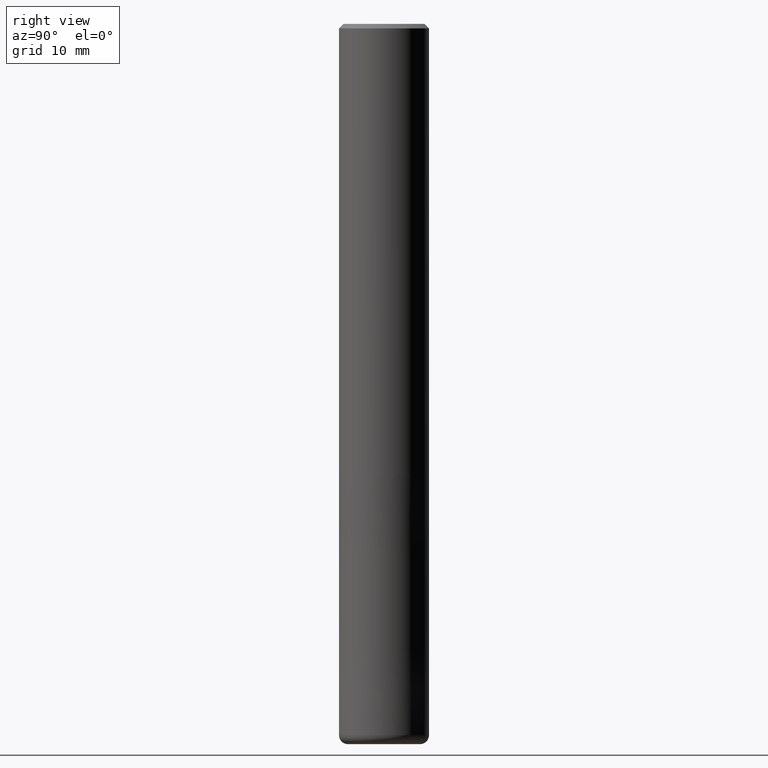
[diagram: clean part render]
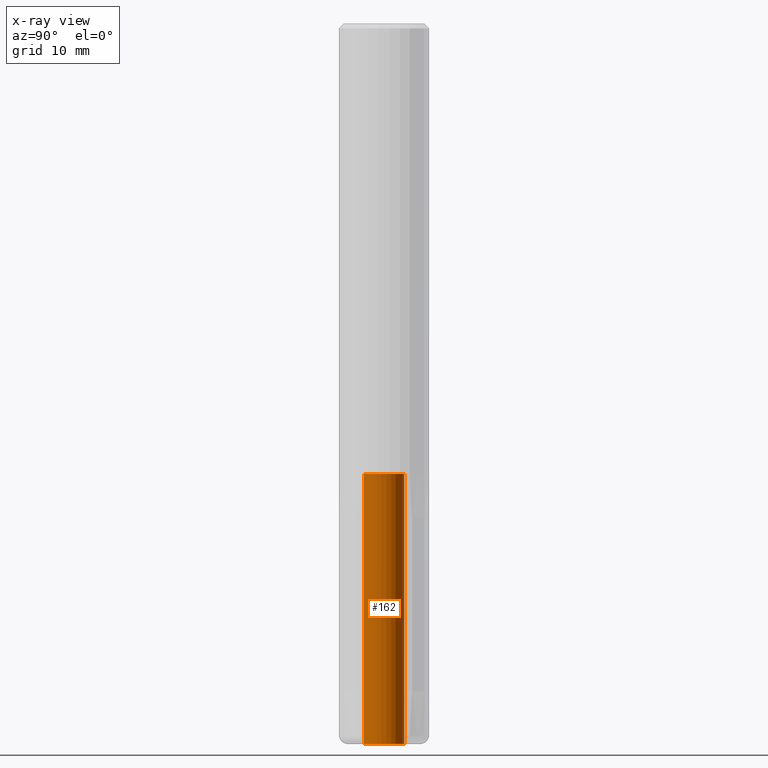
[diagram: x-ray — body ghosted, one internal face saturated and labeled with its STEP entity id]
A machine part, right view, then the same camera in x-ray: the body is ghosted and one INTERNAL B-rep face — a face not visible from any outside direction — is saturated and labeled: STEP entity #162.
In plain terms, the highlighted cylindrical surface (edge-blend (fillet) strip) has radius 2.25 mm, axis along (-0, -0, 1).
Its self-contained STEP definition (entity closure, byte-faithful):
#158=VERTEX_POINT('',#327);
#162=ADVANCED_FACE('',(#331),#332,.F.);
#174=VERTEX_POINT('',#344);
#178=EDGE_CURVE('',#196,#158,#349,.T.);
#182=VERTEX_POINT('',#354);
#196=VERTEX_POINT('',#371);
#208=EDGE_CURVE('',#174,#158,#386,.T.);
#210=EDGE_CURVE('',#174,#182,#388,.T.);
#230=EDGE_CURVE('',#182,#196,#409,.T.);
#327=CARTESIAN_POINT('',(2.75536429610035E-016,-2.25,-50.0));
#331=FACE_OUTER_BOUND('',#518,.T.);
#332=CYLINDRICAL_SURFACE('',#519,2.25);
#344=CARTESIAN_POINT('',(0.0,2.25,-50.0));
#349=LINE('',#542,#543);
#354=CARTESIAN_POINT('',(0.0,2.25,-80.0));
#371=CARTESIAN_POINT('',(2.75536429610035E-016,-2.25,-80.0));
#386=CIRCLE('',#585,2.25);
#388=LINE('',#588,#589);
#409=CIRCLE('',#618,2.25);
#518=EDGE_LOOP('',(#725,#726,#727,#728));
#519=AXIS2_PLACEMENT_3D('',#729,#730,#731);
#542=CARTESIAN_POINT('',(2.75536429610035E-016,-2.25,-65.0));
#543=VECTOR('',#750,1.0);
#585=AXIS2_PLACEMENT_3D('',#804,#805,#806);
#588=CARTESIAN_POINT('',(-2.75536429610035E-016,2.25,-65.0));
#589=VECTOR('',#807,1.0);
#618=AXIS2_PLACEMENT_3D('',#824,#825,#826);
#725=ORIENTED_EDGE('',*,*,#210,.T.);
#726=ORIENTED_EDGE('',*,*,#230,.T.);
#727=ORIENTED_EDGE('',*,*,#178,.T.);
#728=ORIENTED_EDGE('',*,*,#208,.F.);
#729=CARTESIAN_POINT('',(0.0,0.0,-65.0));
#730=DIRECTION('',(-0.0,-0.0,1.0));
#731=DIRECTION('',(0.0,1.0,0.0));
#750=DIRECTION('',(0.0,-0.0,1.0));
#804=CARTESIAN_POINT('',(0.0,0.0,-50.0));
#805=DIRECTION('',(0.0,0.0,-1.0));
#806=DIRECTION('',(0.0,1.0,0.0));
#807=DIRECTION('',(0.0,-0.0,-1.0));
#824=CARTESIAN_POINT('',(0.0,0.0,-80.0));
#825=DIRECTION('',(0.0,0.0,-1.0));
#826=DIRECTION('',(0.0,1.0,0.0));